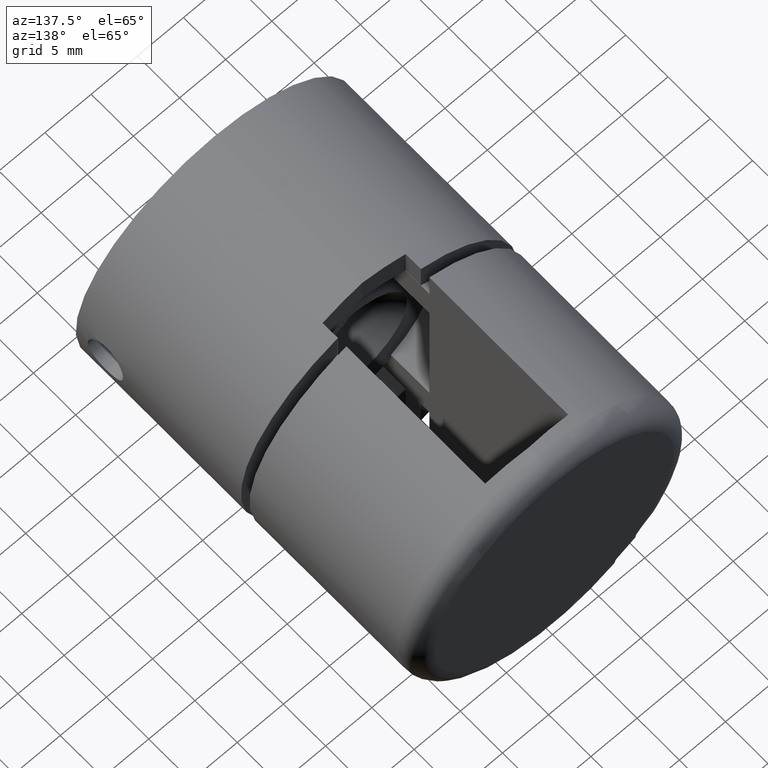
[diagram: clean part render]
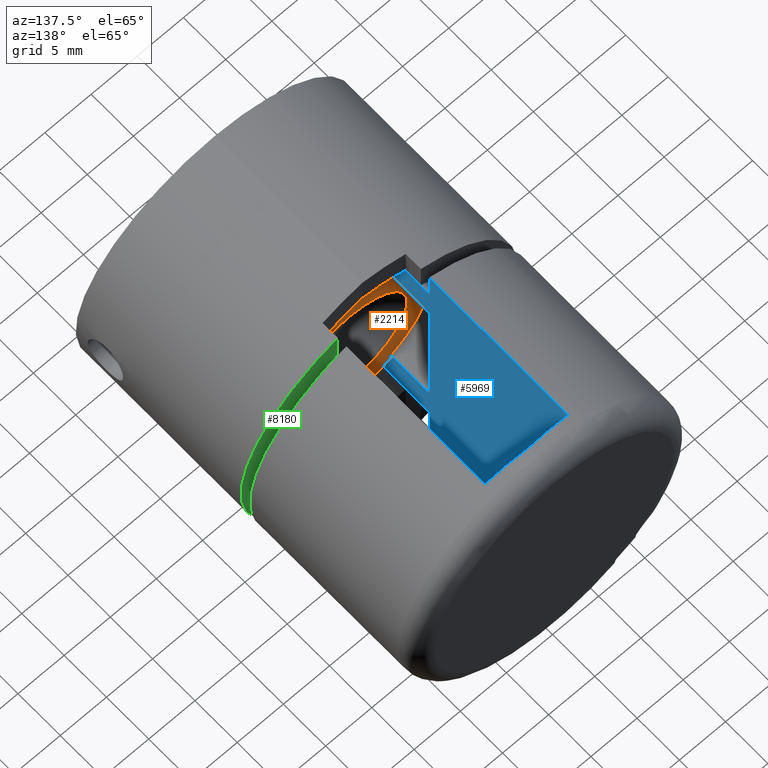
[diagram: same view with three faces highlighted in distinct colors, each labeled with its STEP entity id]
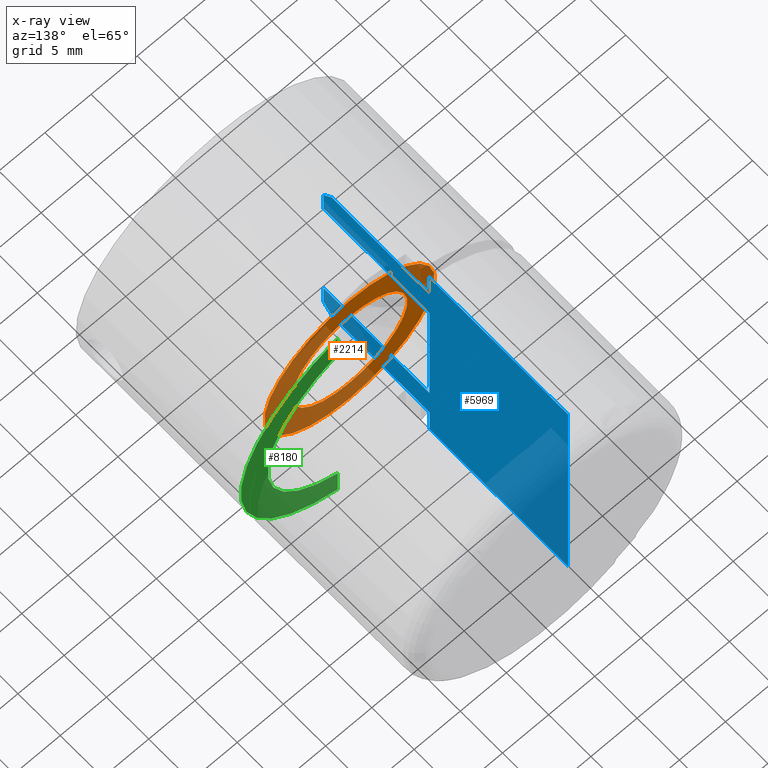
[diagram: x-ray of the same camera — body ghosted, the three highlighted faces saturated]
A machine part, auxiliary view with three faces highlighted in distinct colors.
The next image is the same camera in x-ray (body ghosted, the three faces saturated) — at least one of them is partly hidden behind the body in this view.
Their STEP definitions:

[orange] entity #2214 — the highlighted planar face has unit normal (0, 1, 0).
#215 = AXIS2_PLACEMENT_3D ( 'NONE', #7172, #4518, #9903 ) ;
#892 = DIRECTION ( 'NONE',  ( 0.0000000000000000000, 1.000000000000000000, 0.0000000000000000000 ) ) ;
#2214 = ADVANCED_FACE ( 'NONE', ( #6823, #15645 ), #11571, .T. ) ;
#2747 = ORIENTED_EDGE ( 'NONE', *, *, #12023, .T. ) ;
#3460 = VERTEX_POINT ( 'NONE', #7165 ) ;
#3574 = AXIS2_PLACEMENT_3D ( 'NONE', #8916, #892, #10251 ) ;
#3711 = EDGE_LOOP ( 'NONE', ( #13121 ) ) ;
#3968 = DIRECTION ( 'NONE',  ( 0.0000000000000000000, 0.0000000000000000000, 1.000000000000000000 ) ) ;
#4518 = DIRECTION ( 'NONE',  ( -0.0000000000000000000, 1.000000000000000000, -0.0000000000000000000 ) ) ;
#5461 = EDGE_CURVE ( 'NONE', #3460, #3460, #9968, .T. ) ;
#6823 = FACE_BOUND ( 'NONE', #3711, .T. ) ;
#7165 = CARTESIAN_POINT ( 'NONE',  ( 0.0000000000000000000, 16.00000000000000000, 6.250000000000000000 ) ) ;
#7172 = CARTESIAN_POINT ( 'NONE',  ( 0.0000000000000000000, 16.00000000000000000, 0.0000000000000000000 ) ) ;
#7895 = DIRECTION ( 'NONE',  ( 0.0000000000000000000, 1.000000000000000000, 0.0000000000000000000 ) ) ;
#8916 = CARTESIAN_POINT ( 'NONE',  ( 0.0000000000000000000, 16.00000000000000000, 0.0000000000000000000 ) ) ;
#9903 = DIRECTION ( 'NONE',  ( 0.0000000000000000000, 0.0000000000000000000, 1.000000000000000000 ) ) ;
#9968 = CIRCLE ( 'NONE', #215, 6.250000000000000000 ) ;
#10082 = CIRCLE ( 'NONE', #13887, 9.250000000000001800 ) ;
#10251 = DIRECTION ( 'NONE',  ( 0.0000000000000000000, -0.0000000000000000000, 1.000000000000000000 ) ) ;
#11176 = CARTESIAN_POINT ( 'NONE',  ( 0.0000000000000000000, 16.00000000000000000, 9.250000000000001800 ) ) ;
#11571 = PLANE ( 'NONE',  #3574 ) ;
#12023 = EDGE_CURVE ( 'NONE', #12859, #12859, #10082, .T. ) ;
#12859 = VERTEX_POINT ( 'NONE', #11176 ) ;
#13121 = ORIENTED_EDGE ( 'NONE', *, *, #5461, .F. ) ;
#13887 = AXIS2_PLACEMENT_3D ( 'NONE', #16245, #7895, #3968 ) ;
#15645 = FACE_OUTER_BOUND ( 'NONE', #15841, .T. ) ;
#15841 = EDGE_LOOP ( 'NONE', ( #2747 ) ) ;
#16245 = CARTESIAN_POINT ( 'NONE',  ( 0.0000000000000000000, 16.00000000000000000, 0.0000000000000000000 ) ) ;

[blue] entity #5969 — the highlighted planar face has unit normal (-1, 0, -0).
#135 = CARTESIAN_POINT ( 'NONE',  ( -4.500000000000002700, 33.01466950106963300, -10.81744517860281900 ) ) ;
#692 = CARTESIAN_POINT ( 'NONE',  ( -4.500000000000000000, 33.68000000000000000, 10.09219995838373200 ) ) ;
#1214 = CARTESIAN_POINT ( 'NONE',  ( -4.500000000000001800, 33.68000000000000000, -11.17821542107683500 ) ) ;
#1552 = CARTESIAN_POINT ( 'NONE',  ( -4.500000000000000900, 33.68000000000000000, 5.204170427930422300E-016 ) ) ;
#1763 = CARTESIAN_POINT ( 'NONE',  ( -4.500000000000000000, 33.68000000000000000, 7.504165509901820700 ) ) ;
#2011 = EDGE_CURVE ( 'NONE', #11549, #7752, #15216, .T. ) ;
#2071 = DIRECTION ( 'NONE',  ( -1.156482317317871500E-016, 0.0000000000000000000, -1.000000000000000000 ) ) ;
#2087 = ORIENTED_EDGE ( 'NONE', *, *, #7865, .F. ) ;
#2232 = EDGE_LOOP ( 'NONE', ( #11103, #8025, #16973, #5619, #8595, #2549, #2087, #2450, #6542, #6438, #6897, #9496, #4420, #8185 ) ) ;
#2320 = CARTESIAN_POINT ( 'NONE',  ( -4.500000000000001800, 32.68000000000002800, -11.17821542107683500 ) ) ;
#2429 = CARTESIAN_POINT ( 'NONE',  ( -4.500000000000000000, 21.14999999999999900, -15.00000000000000000 ) ) ;
#2438 = AXIS2_PLACEMENT_3D ( 'NONE', #11182, #3042, #7223 ) ;
#2450 = ORIENTED_EDGE ( 'NONE', *, *, #9479, .F. ) ;
#2549 = ORIENTED_EDGE ( 'NONE', *, *, #8246, .T. ) ;
#2573 = VERTEX_POINT ( 'NONE', #15835 ) ;
#2675 = VERTEX_POINT ( 'NONE', #8176 ) ;
#2713 = LINE ( 'NONE', #5868, #8624 ) ;
#3042 = DIRECTION ( 'NONE',  ( -1.000000000000000000, 0.0000000000000000000, 1.156482317317871500E-016 ) ) ;
#3601 = CARTESIAN_POINT ( 'NONE',  ( -4.500000000000000000, 21.14999999999999900, -14.30908802125418500 ) ) ;
#3870 = VECTOR ( 'NONE', #2071, 1000.000000000000000 ) ;
#4061 = CARTESIAN_POINT ( 'NONE',  ( -4.500000000000003600, 4.735835006773702300, -15.00000000000000000 ) ) ;
#4165 = CARTESIAN_POINT ( 'NONE',  ( -4.500000000000000000, 33.68000000000000000, 11.17821542107683500 ) ) ;
#4307 = VECTOR ( 'NONE', #10789, 1000.000000000000000 ) ;
#4420 = ORIENTED_EDGE ( 'NONE', *, *, #6461, .T. ) ;
#5437 = VECTOR ( 'NONE', #16576, 1000.000000000000000 ) ;
#5463 = VERTEX_POINT ( 'NONE', #1763 ) ;
#5619 = ORIENTED_EDGE ( 'NONE', *, *, #12786, .T. ) ;
#5657 = CARTESIAN_POINT ( 'NONE',  ( -4.500000000000001800, 21.14999999999999900, -7.504165509901819000 ) ) ;
#5868 = CARTESIAN_POINT ( 'NONE',  ( -4.500000000000000000, -3.598737341529170600, 7.504165509901820700 ) ) ;
#5942 = CARTESIAN_POINT ( 'NONE',  ( -4.500000000000000000, 21.14999999999999900, 7.504165509901820700 ) ) ;
#5969 = ADVANCED_FACE ( 'NONE', ( #6209 ), #13830, .F. ) ;
#6147 = CARTESIAN_POINT ( 'NONE',  ( -4.500000000000000000, 21.14999999999999900, -14.30908802125418500 ) ) ;
#6209 = FACE_OUTER_BOUND ( 'NONE', #2232, .T. ) ;
#6438 = ORIENTED_EDGE ( 'NONE', *, *, #10336, .T. ) ;
#6461 = EDGE_CURVE ( 'NONE', #2675, #12324, #11618, .T. ) ;
#6542 = ORIENTED_EDGE ( 'NONE', *, *, #11726, .F. ) ;
#6584 = EDGE_CURVE ( 'NONE', #14261, #17131, #9731, .T. ) ;
#6796 = CARTESIAN_POINT ( 'NONE',  ( -4.500000000000001800, 32.68000000000002800, -11.17821542107683500 ) ) ;
#6897 = ORIENTED_EDGE ( 'NONE', *, *, #2011, .F. ) ;
#7049 = VECTOR ( 'NONE', #11757, 1000.000000000000000 ) ;
#7223 = DIRECTION ( 'NONE',  ( 1.156482317317871500E-016, 0.0000000000000000000, 1.000000000000000000 ) ) ;
#7266 = EDGE_CURVE ( 'NONE', #5463, #7951, #11808, .T. ) ;
#7432 = CARTESIAN_POINT ( 'NONE',  ( -4.500000000000000000, 32.68000000000002800, 11.17821542107683500 ) ) ;
#7512 = CARTESIAN_POINT ( 'NONE',  ( -4.500000000000000000, 33.68000000000000000, 10.09219995838373200 ) ) ;
#7602 = VECTOR ( 'NONE', #8737, 1000.000000000000000 ) ;
#7742 = VECTOR ( 'NONE', #9566, 1000.000000000000000 ) ;
#7752 = VERTEX_POINT ( 'NONE', #8031 ) ;
#7844 = LINE ( 'NONE', #13400, #9512 ) ;
#7865 = EDGE_CURVE ( 'NONE', #14598, #11021, #7844, .T. ) ;
#7874 = CARTESIAN_POINT ( 'NONE',  ( -4.500000000000000000, 21.14999999999999900, 14.30908802125418300 ) ) ;
#7951 = VERTEX_POINT ( 'NONE', #7512 ) ;
#8025 = ORIENTED_EDGE ( 'NONE', *, *, #13290, .T. ) ;
#8031 = CARTESIAN_POINT ( 'NONE',  ( -4.500000000000001800, 21.14999999999999900, -11.17821542107683700 ) ) ;
#8150 = DIRECTION ( 'NONE',  ( 0.0000000000000000000, 1.000000000000000000, 0.0000000000000000000 ) ) ;
#8176 = CARTESIAN_POINT ( 'NONE',  ( -4.500000000000001800, 33.68000000000000000, -10.09219995838373200 ) ) ;
#8185 = ORIENTED_EDGE ( 'NONE', *, *, #10706, .T. ) ;
#8246 = EDGE_CURVE ( 'NONE', #14661, #11021, #12753, .T. ) ;
#8573 = CARTESIAN_POINT ( 'NONE',  ( -4.500000000000000000, 32.68000000000002800, 11.17821542107683500 ) ) ;
#8595 = ORIENTED_EDGE ( 'NONE', *, *, #15346, .F. ) ;
#8624 = VECTOR ( 'NONE', #11310, 1000.000000000000000 ) ;
#8737 = DIRECTION ( 'NONE',  ( -0.0000000000000000000, -1.000000000000000000, -0.0000000000000000000 ) ) ;
#9479 = EDGE_CURVE ( 'NONE', #2573, #14598, #17139, .T. ) ;
#9485 = CARTESIAN_POINT ( 'NONE',  ( -4.500000000000001800, 33.34813944778180400, -10.45555572988375600 ) ) ;
#9496 = ORIENTED_EDGE ( 'NONE', *, *, #12609, .T. ) ;
#9512 = VECTOR ( 'NONE', #8150, 1000.000000000000000 ) ;
#9566 = DIRECTION ( 'NONE',  ( -0.0000000000000000000, -0.0000000000000000000, 1.000000000000000000 ) ) ;
#9731 = LINE ( 'NONE', #16525, #3870 ) ;
#9765 = VECTOR ( 'NONE', #10572, 1000.000000000000000 ) ;
#10336 = EDGE_CURVE ( 'NONE', #12395, #7752, #15771, .T. ) ;
#10572 = DIRECTION ( 'NONE',  ( -0.0000000000000000000, -1.000000000000000000, -0.0000000000000000000 ) ) ;
#10651 = B_SPLINE_CURVE_WITH_KNOTS ( 'NONE', 3,
 ( #6796, #135, #9485, #11577 ),
 .UNSPECIFIED., .F., .F.,
 ( 4, 4 ),
 ( 1.734723475976807100E-018, 0.001476289126563109800 ),
 .UNSPECIFIED. ) ;
#10706 = EDGE_CURVE ( 'NONE', #12324, #17131, #15139, .T. ) ;
#10789 = DIRECTION ( 'NONE',  ( 1.156482317317871500E-016, -0.0000000000000000000, 1.000000000000000000 ) ) ;
#10857 = CARTESIAN_POINT ( 'NONE',  ( -4.500000000000000900, 33.68000000000000000, 5.204170427930422300E-016 ) ) ;
#11021 = VERTEX_POINT ( 'NONE', #7874 ) ;
#11103 = ORIENTED_EDGE ( 'NONE', *, *, #6584, .F. ) ;
#11123 = LINE ( 'NONE', #6147, #7602 ) ;
#11182 = CARTESIAN_POINT ( 'NONE',  ( -4.500000000000003600, -39.52124524847004500, -30.00000000000000700 ) ) ;
#11310 = DIRECTION ( 'NONE',  ( -0.0000000000000000000, 1.000000000000000000, -0.0000000000000000000 ) ) ;
#11358 = CARTESIAN_POINT ( 'NONE',  ( -4.500000000000003600, 4.735835006773702300, 14.30908802125418300 ) ) ;
#11415 = CARTESIAN_POINT ( 'NONE',  ( -4.500000000000000000, 21.14999999999999900, 11.17821542107683900 ) ) ;
#11549 = VERTEX_POINT ( 'NONE', #2320 ) ;
#11577 = CARTESIAN_POINT ( 'NONE',  ( -4.500000000000001800, 33.68000000000000000, -10.09219995838373200 ) ) ;
#11618 = LINE ( 'NONE', #1552, #4307 ) ;
#11726 = EDGE_CURVE ( 'NONE', #12395, #2573, #11123, .T. ) ;
#11757 = DIRECTION ( 'NONE',  ( 0.0000000000000000000, 1.000000000000000000, 0.0000000000000000000 ) ) ;
#11762 = VECTOR ( 'NONE', #13257, 1000.000000000000000 ) ;
#11808 = LINE ( 'NONE', #10857, #15820 ) ;
#12130 = DIRECTION ( 'NONE',  ( 1.156482317317871500E-016, -0.0000000000000000000, 1.000000000000000000 ) ) ;
#12324 = VERTEX_POINT ( 'NONE', #12957 ) ;
#12395 = VERTEX_POINT ( 'NONE', #3601 ) ;
#12609 = EDGE_CURVE ( 'NONE', #11549, #2675, #10651, .T. ) ;
#12753 = LINE ( 'NONE', #16631, #5437 ) ;
#12786 = EDGE_CURVE ( 'NONE', #7951, #14432, #13000, .T. ) ;
#12957 = CARTESIAN_POINT ( 'NONE',  ( -4.500000000000001800, 33.68000000000000000, -7.504165509901819000 ) ) ;
#13000 = B_SPLINE_CURVE_WITH_KNOTS ( 'NONE', 3,
 ( #692, #14042, #16526, #7432 ),
 .UNSPECIFIED., .F., .F.,
 ( 4, 4 ),
 ( 0.0000000000000000000, 0.001476289126563105900 ),
 .UNSPECIFIED. ) ;
#13211 = CARTESIAN_POINT ( 'NONE',  ( -4.500000000000001800, -3.598737341529170600, -7.504165509901819000 ) ) ;
#13254 = DIRECTION ( 'NONE',  ( 0.0000000000000000000, -1.000000000000000000, 0.0000000000000000000 ) ) ;
#13257 = DIRECTION ( 'NONE',  ( -0.0000000000000000000, -0.0000000000000000000, 1.000000000000000000 ) ) ;
#13290 = EDGE_CURVE ( 'NONE', #14261, #5463, #2713, .T. ) ;
#13400 = CARTESIAN_POINT ( 'NONE',  ( -4.500000000000000000, 21.14999999999999900, 14.30908802125418500 ) ) ;
#13830 = PLANE ( 'NONE',  #2438 ) ;
#14042 = CARTESIAN_POINT ( 'NONE',  ( -4.500000000000000000, 33.34813944778181100, 10.45555572988375600 ) ) ;
#14261 = VERTEX_POINT ( 'NONE', #5942 ) ;
#14432 = VERTEX_POINT ( 'NONE', #8573 ) ;
#14588 = LINE ( 'NONE', #4165, #7049 ) ;
#14598 = VERTEX_POINT ( 'NONE', #11358 ) ;
#14661 = VERTEX_POINT ( 'NONE', #11415 ) ;
#15139 = LINE ( 'NONE', #13211, #16568 ) ;
#15216 = LINE ( 'NONE', #1214, #9765 ) ;
#15346 = EDGE_CURVE ( 'NONE', #14661, #14432, #14588, .T. ) ;
#15771 = LINE ( 'NONE', #2429, #11762 ) ;
#15820 = VECTOR ( 'NONE', #12130, 1000.000000000000000 ) ;
#15835 = CARTESIAN_POINT ( 'NONE',  ( -4.500000000000003600, 4.735835006773702300, -14.30908802125418500 ) ) ;
#16525 = CARTESIAN_POINT ( 'NONE',  ( -4.500000000000003600, 21.15000000000000200, -30.00000000000000700 ) ) ;
#16526 = CARTESIAN_POINT ( 'NONE',  ( -4.500000000000000000, 33.01466950106963300, 10.81744517860281700 ) ) ;
#16568 = VECTOR ( 'NONE', #13254, 1000.000000000000000 ) ;
#16576 = DIRECTION ( 'NONE',  ( -0.0000000000000000000, -0.0000000000000000000, 1.000000000000000000 ) ) ;
#16631 = CARTESIAN_POINT ( 'NONE',  ( -4.500000000000000000, 21.14999999999999900, -15.00000000000000000 ) ) ;
#16973 = ORIENTED_EDGE ( 'NONE', *, *, #7266, .T. ) ;
#17131 = VERTEX_POINT ( 'NONE', #5657 ) ;
#17139 = LINE ( 'NONE', #4061, #7742 ) ;

[green] entity #8180 — the highlighted planar face has unit normal (0, -1, 0).
#277 = VERTEX_POINT ( 'NONE', #5137 ) ;
#315 = AXIS2_PLACEMENT_3D ( 'NONE', #10098, #7478, #10322 ) ;
#677 = CARTESIAN_POINT ( 'NONE',  ( -4.500000000000000000, 0.0000000000000000000, -15.00000000000000000 ) ) ;
#835 = ORIENTED_EDGE ( 'NONE', *, *, #5018, .T. ) ;
#934 = EDGE_LOOP ( 'NONE', ( #8975, #835, #17159, #10898 ) ) ;
#1136 = VERTEX_POINT ( 'NONE', #9826 ) ;
#1671 = DIRECTION ( 'NONE',  ( -0.0000000000000000000, -0.0000000000000000000, 1.000000000000000000 ) ) ;
#1845 = AXIS2_PLACEMENT_3D ( 'NONE', #3236, #12715, #12777 ) ;
#1892 = PLANE ( 'NONE',  #4553 ) ;
#1927 = DIRECTION ( 'NONE',  ( -0.0000000000000000000, -0.0000000000000000000, 1.000000000000000000 ) ) ;
#3236 = CARTESIAN_POINT ( 'NONE',  ( 0.0000000000000000000, 0.0000000000000000000, 0.0000000000000000000 ) ) ;
#3997 = EDGE_CURVE ( 'NONE', #9679, #1136, #4139, .T. ) ;
#4139 = CIRCLE ( 'NONE', #315, 12.10000000000000000 ) ;
#4291 = VECTOR ( 'NONE', #1927, 1000.000000000000000 ) ;
#4553 = AXIS2_PLACEMENT_3D ( 'NONE', #15325, #8486, #6011 ) ;
#4860 = VERTEX_POINT ( 'NONE', #16841 ) ;
#5018 = EDGE_CURVE ( 'NONE', #4860, #9679, #16034, .T. ) ;
#5137 = CARTESIAN_POINT ( 'NONE',  ( -4.500000000000000000, 0.0000000000000000000, 14.30908802125418000 ) ) ;
#6011 = DIRECTION ( 'NONE',  ( 0.0000000000000000000, -0.0000000000000000000, 1.000000000000000000 ) ) ;
#6746 = EDGE_CURVE ( 'NONE', #1136, #277, #10978, .T. ) ;
#6904 = FACE_OUTER_BOUND ( 'NONE', #934, .T. ) ;
#7478 = DIRECTION ( 'NONE',  ( 0.0000000000000000000, 1.000000000000000000, 0.0000000000000000000 ) ) ;
#8180 = ADVANCED_FACE ( 'NONE', ( #6904 ), #1892, .F. ) ;
#8486 = DIRECTION ( 'NONE',  ( 0.0000000000000000000, 1.000000000000000000, 0.0000000000000000000 ) ) ;
#8975 = ORIENTED_EDGE ( 'NONE', *, *, #9590, .F. ) ;
#9385 = CIRCLE ( 'NONE', #1845, 15.00000000000000000 ) ;
#9403 = CARTESIAN_POINT ( 'NONE',  ( -4.500000000000000000, 0.0000000000000000000, -15.00000000000000000 ) ) ;
#9590 = EDGE_CURVE ( 'NONE', #4860, #277, #9385, .T. ) ;
#9679 = VERTEX_POINT ( 'NONE', #12997 ) ;
#9826 = CARTESIAN_POINT ( 'NONE',  ( -4.500000000000000000, 0.0000000000000000000, 11.23209686567917100 ) ) ;
#10098 = CARTESIAN_POINT ( 'NONE',  ( 0.0000000000000000000, 0.0000000000000000000, 0.0000000000000000000 ) ) ;
#10322 = DIRECTION ( 'NONE',  ( 0.0000000000000000000, 0.0000000000000000000, 1.000000000000000000 ) ) ;
#10898 = ORIENTED_EDGE ( 'NONE', *, *, #6746, .T. ) ;
#10978 = LINE ( 'NONE', #677, #4291 ) ;
#12469 = VECTOR ( 'NONE', #1671, 1000.000000000000000 ) ;
#12715 = DIRECTION ( 'NONE',  ( 0.0000000000000000000, 1.000000000000000000, 0.0000000000000000000 ) ) ;
#12777 = DIRECTION ( 'NONE',  ( 0.0000000000000000000, 0.0000000000000000000, 1.000000000000000000 ) ) ;
#12997 = CARTESIAN_POINT ( 'NONE',  ( -4.500000000000000000, 0.0000000000000000000, -11.23209686567917300 ) ) ;
#15325 = CARTESIAN_POINT ( 'NONE',  ( 0.0000000000000000000, 0.0000000000000000000, 0.0000000000000000000 ) ) ;
#16034 = LINE ( 'NONE', #9403, #12469 ) ;
#16841 = CARTESIAN_POINT ( 'NONE',  ( -4.500000000000000000, 0.0000000000000000000, -14.30908802125418000 ) ) ;
#17159 = ORIENTED_EDGE ( 'NONE', *, *, #3997, .T. ) ;